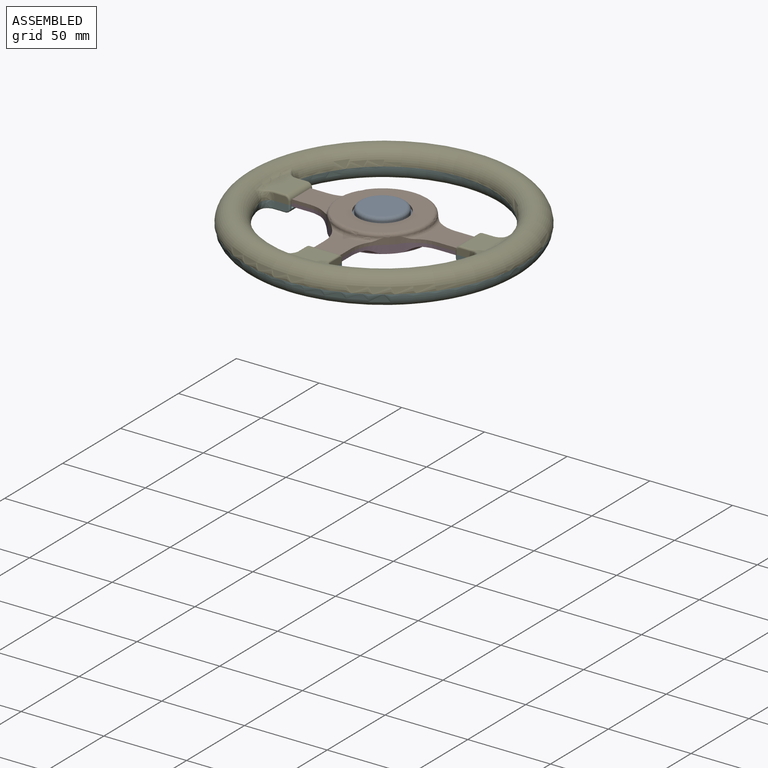
[diagram: assembled view]
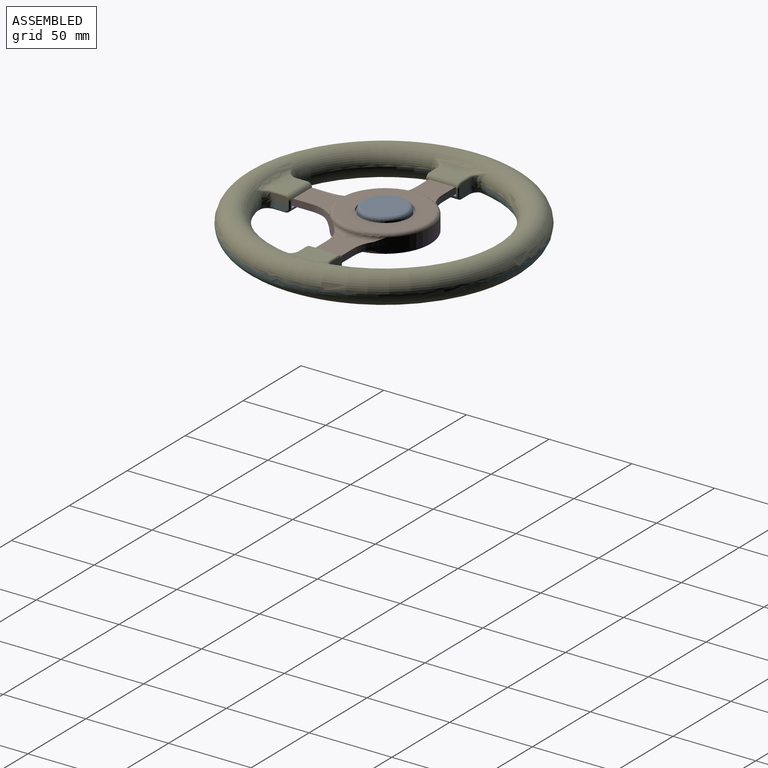
[diagram: assembled view, second angle]
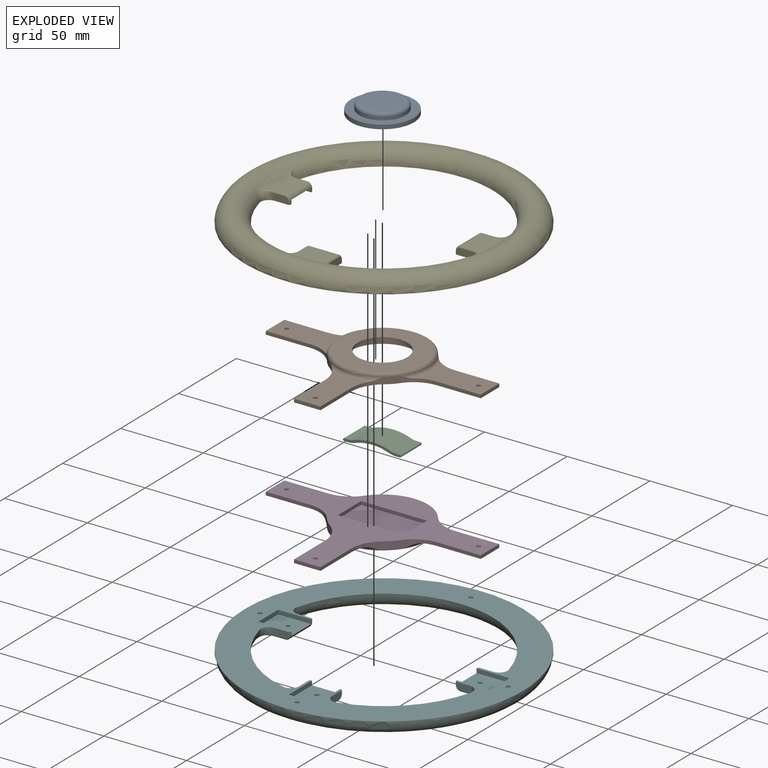
[diagram: exploded view]
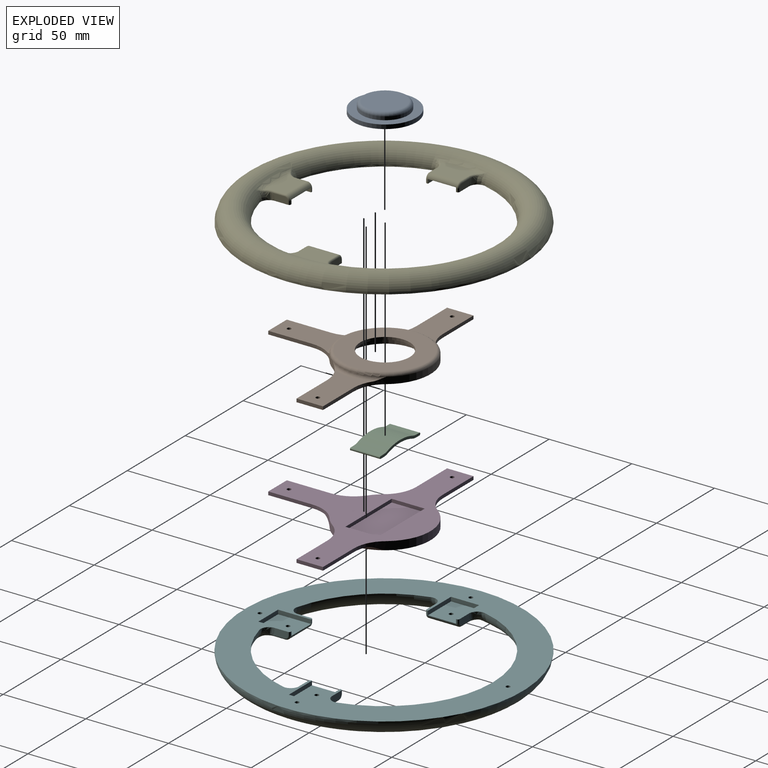
[diagram: exploded view, second angle]
ASSEMBLY  parts=6 mates=5
PART A: 6 faces, bbox 38x38x6.5 mm
  f0: cylinder r=19mm len=38mm, axis (0,0,-1), area 298.5mm2, adj f1,f2
  f1: plane 38x38mm, normal (0,0,1), area 518.4mm2, adj f0,f3
  f2: plane 38x38mm, normal (0,0,-1), area 1134.1mm2, adj f0
  f3: cylinder r=14mm len=28mm, axis (0,0,-1), area 175.9mm2, adj f1,f5
  f4: plane 24x24mm, normal (0,0,1), area 452.4mm2, adj f5
  f5: torus R=12mm, axis (0,0,1), area 262mm2, adj f3,f4
PART B: 33 faces, bbox 130x6x94.8 mm
  f0: cylinder r=27.5mm len=6mm, axis (0,1,0), area 34.1mm2, adj f14,f17,f25,f26
  f1: cylinder r=27.5mm len=44.43mm, axis (0,1,0), area 206.9mm2, adj f13,f15,f25,f26
  f2: plane 26.63x2mm, normal (0,0,-1), area 53.3mm2, adj f4,f12,f18,f26
  f3: plane 26.63x2mm, normal (0,0,1), area 53.3mm2, adj f4,f13,f18,f26
  f4: plane 16x2mm, normal (-1,0,0), area 32mm2, adj f2,f3,f18,f26
  f5: cylinder r=27.5mm len=6mm, axis (0,1,0), area 34.1mm2, adj f12,f16,f25,f26
  f6: plane 16x2mm, normal (0,0,-1), area 32mm2, adj f7,f8,f20,f26
  f7: plane 26.63x2mm, normal (1,0,0), area 53.3mm2, adj f6,f17,f20,f26
  f8: plane 26.63x2mm, normal (-1,0,0), area 53.3mm2, adj f6,f16,f20,f26
  f9: plane 16x2mm, normal (1,0,0), area 32mm2, adj f10,f11,f21,f26
  f10: plane 26.63x2mm, normal (0,0,1), area 53.3mm2, adj f9,f15,f21,f26
  f11: plane 26.63x2mm, normal (0,0,-1), area 53.3mm2, adj f9,f14,f21,f26
  f12: cylinder r=20mm len=16.16mm, axis (0,1,0), area 43mm2, adj f2,f5,f18,f22,f26
  f13: cylinder r=20mm len=16.16mm, axis (0,1,0), area 43mm2, adj f1,f3,f18,f22,f26
  f14: cylinder r=20mm len=16.16mm, axis (0,1,0), area 43mm2, adj f0,f11,f21,f23,f26
  f15: cylinder r=20mm len=16.16mm, axis (0,1,0), area 43mm2, adj f1,f10,f21,f23,f26
  f16: cylinder r=20mm len=16.16mm, axis (0,1,0), area 43mm2, adj f5,f8,f20,f24,f26
  f17: cylinder r=20mm len=16.16mm, axis (0,1,0), area 43mm2, adj f0,f7,f20,f24,f26
  f18: plane 37.79x22.81mm, normal (0,1,0), area 589mm2, adj f2,f3,f4,f12,f13,f22,f30
  f19: plane 51x51mm, normal (0,1,0), area 1336mm2, adj f25,f29
  f20: plane 37.79x22.81mm, normal (0,1,0), area 589mm2, adj f6,f7,f8,f16,f17,f24,f31
  f21: plane 37.79x22.81mm, normal (0,1,0), area 589mm2, adj f9,f10,f11,f14,f15,f23,f32
  f22: torus R=29.5mm, axis (0,-1,0), area 89.1mm2, adj f12,f13,f18,f25
  f23: torus R=29.5mm, axis (0,-1,0), area 89.1mm2, adj f14,f15,f21,f25
  f24: torus R=29.5mm, axis (0,-1,0), area 89.1mm2, adj f16,f17,f20,f25
  f25: torus R=25.5mm, axis (0,-1,0), area 528.5mm2, adj f0,f1,f5,f19,f22,f23,f24
  f26: plane 130x92.5mm, normal (0,-1,0), area 3047.1mm2, adj f0,f1,f2,f3,f4,f5,f6,f7
  f27: cylinder r=20mm len=40mm, axis (0,-1,0), area 565.5mm2, adj f26,f28
  f28: plane 40x40mm, normal (0,-1,0), area 549.8mm2, adj f27,f29
  f29: cylinder r=15mm len=30mm, axis (0,-1,0), area 141.4mm2, adj f19,f28
  f30: cylinder r=1.25mm len=2.5mm, axis (0,1,0), area 15.7mm2, adj f18,f26
  f31: cylinder r=1.25mm len=2.5mm, axis (0,1,0), area 15.7mm2, adj f20,f26
  f32: cylinder r=1.25mm len=2.5mm, axis (0,1,0), area 15.7mm2, adj f21,f26
PART C: 14 faces, bbox 35x4x18 mm
  f0: plane 18x2.65mm, normal (0,-1,0), area 47.7mm2, adj f6,f7,f9,f12
  f1: cylinder r=31mm len=21.32mm, axis (0,0,-1), area 391.7mm2, adj f6,f7,f9,f11
  f2: plane 18x2.65mm, normal (0,-1,0), area 47.7mm2, adj f6,f7,f11,f13
  f3: plane 18x2.39mm, normal (0,1,0), area 43mm2, adj f6,f7,f10,f13
  f4: cylinder r=32.5mm len=21.96mm, axis (0,0,-1), area 403.3mm2, adj f6,f7,f8,f10
  f5: plane 18x2.39mm, normal (0,1,0), area 43mm2, adj f6,f7,f8,f12
  f6: plane 35x4mm, normal (0,0,1), area 53mm2, adj f0,f1,f2,f3,f4,f5,f8,f9
  f7: plane 35x4mm, normal (0,0,-1), area 53mm2, adj f0,f1,f2,f3,f4,f5,f8,f9
  f8: cylinder r=10mm len=18mm, axis (0,0,-1), area 62mm2, adj f4,f5,f6,f7
  f9: cylinder r=10mm len=18mm, axis (0,0,-1), area 63.2mm2, adj f0,f1,f6,f7
  f10: cylinder r=10mm len=18mm, axis (0,0,-1), area 62mm2, adj f3,f4,f6,f7
  f11: cylinder r=10mm len=18mm, axis (0,0,-1), area 63.2mm2, adj f1,f2,f6,f7
  f12: cylinder r=0.75mm len=18mm, axis (0,0,-1), area 42.4mm2, adj f0,f5,f6,f7
  f13: cylinder r=0.75mm len=18mm, axis (0,0,1), area 42.4mm2, adj f2,f3,f6,f7
PART D: 34 faces, bbox 130x7x92.5 mm
  f0: plane 130x92.5mm, normal (0,-1,0), area 3503.7mm2, adj f1,f2,f3,f4,f5,f6,f7,f8
  f1: cylinder r=27.5mm len=44.43mm, axis (0,1,0), area 258.6mm2, adj f0,f14,f16,f20
  f2: cylinder r=27.5mm len=6mm, axis (0,1,0), area 42.6mm2, adj f0,f15,f18,f20
  f3: plane 26.63x2mm, normal (0,0,-1), area 53.3mm2, adj f0,f5,f13,f19
  f4: plane 26.63x2mm, normal (0,0,1), area 53.3mm2, adj f0,f5,f14,f19
  f5: plane 16x2mm, normal (-1,0,0), area 32mm2, adj f0,f3,f4,f19
  f6: cylinder r=27.5mm len=6mm, axis (0,1,0), area 42.6mm2, adj f0,f13,f17,f20
  f7: plane 16x2mm, normal (0,0,-1), area 32mm2, adj f0,f8,f9,f21
  f8: plane 26.63x2mm, normal (1,0,0), area 53.3mm2, adj f0,f7,f18,f21
  f9: plane 26.63x2mm, normal (-1,0,0), area 53.3mm2, adj f0,f7,f17,f21
  f10: plane 16x2mm, normal (1,0,0), area 32mm2, adj f0,f11,f12,f22
  f11: plane 26.63x2mm, normal (0,0,1), area 53.3mm2, adj f0,f10,f16,f22
  f12: plane 26.63x2mm, normal (0,0,-1), area 53.3mm2, adj f0,f10,f15,f22
  f13: cylinder r=20mm len=16.16mm, axis (0,1,0), area 52.7mm2, adj f0,f3,f6,f19,f23
  f14: cylinder r=20mm len=16.16mm, axis (0,1,0), area 52.7mm2, adj f0,f1,f4,f19,f23
  f15: cylinder r=20mm len=16.16mm, axis (0,1,0), area 52.7mm2, adj f0,f2,f12,f22,f24
  f16: cylinder r=20mm len=16.16mm, axis (0,1,0), area 52.7mm2, adj f0,f1,f11,f22,f24
  f17: cylinder r=20mm len=16.16mm, axis (0,1,0), area 52.7mm2, adj f0,f6,f9,f21,f25
  f18: cylinder r=20mm len=16.16mm, axis (0,1,0), area 52.7mm2, adj f0,f2,f8,f21,f25
  f19: plane 34.38x19.12mm, normal (0,1,0), area 534.4mm2, adj f3,f4,f5,f13,f14,f23,f33
  f20: plane 55x55mm, normal (0,1,0), area 2375.8mm2, adj f1,f2,f6,f23,f24,f25
  f21: plane 34.38x19.12mm, normal (0,1,0), area 534.4mm2, adj f7,f8,f9,f17,f18,f25,f32
  f22: plane 34.38x19.12mm, normal (0,1,0), area 534.4mm2, adj f10,f11,f12,f15,f16,f24,f31
  f23: torus R=32.08mm, axis (0,-1,0), area 141.9mm2, adj f13,f14,f19,f20
  f24: torus R=32.08mm, axis (0,-1,0), area 141.9mm2, adj f15,f16,f20,f22
  f25: torus R=32.08mm, axis (0,-1,0), area 141.9mm2, adj f17,f18,f20,f21
  f26: plane 20x2mm, normal (-1,0,0), area 40mm2, adj f0,f27,f29,f30
  f27: plane 40x2mm, normal (0,0,-1), area 80mm2, adj f0,f26,f28,f30
  f28: plane 20x2mm, normal (1,0,0), area 40mm2, adj f0,f27,f29,f30
  f29: plane 40x2mm, normal (0,0,1), area 80mm2, adj f0,f26,f28,f30
  f30: plane 40x20mm, normal (0,-1,0), area 800mm2, adj f26,f27,f28,f29
  f31: cylinder r=1.25mm len=2.5mm, axis (0,1,0), area 15.7mm2, adj f0,f22
  f32: cylinder r=1.25mm len=2.5mm, axis (0,1,0), area 15.7mm2, adj f0,f21
  f33: cylinder r=1.25mm len=2.5mm, axis (0,1,0), area 15.7mm2, adj f0,f19
PART E: 85 faces, bbox 182.1x182.1x17.3 mm
  f0: plane 2x0.5mm, normal (1,0,0), area 1mm2, adj f4,f28,f29,f56
  f1: plane 2x0.5mm, normal (0,1,0), area 1mm2, adj f4,f27,f33,f61
  f2: plane 2x0.5mm, normal (-1,0,0), area 1mm2, adj f4,f26,f37,f66
  f3: torus R=75mm, axis (0,0,1), area 12633.3mm2, adj f4,f17,f18,f19,f20,f21,f22,f23
  f4: plane 168.25x168.25mm, normal (0,0,-1), area 8448mm2, adj f0,f1,f2,f3,f6,f7,f8,f10
  f5: plane 21.59x12.2mm, normal (0,0,1), area 221.6mm2, adj f25,f28,f42,f43,f58,f59
  f6: plane 8.74x4.01mm, normal (0,1,0), area 32.4mm2, adj f4,f21,f43,f44,f45
  f7: plane 8.74x4.01mm, normal (0,-1,0), area 32.4mm2, adj f4,f22,f56,f57,f58
  f8: plane 2x0.5mm, normal (1,0,0), area 1mm2, adj f4,f28,f31,f45
  f9: plane 21.59x12.2mm, normal (0,0,1), area 221.6mm2, adj f24,f27,f47,f48,f63,f64
  f10: plane 2x0.5mm, normal (0,1,0), area 1mm2, adj f4,f27,f35,f50
  f11: plane 8.74x4.01mm, normal (-1,0,0), area 32.4mm2, adj f4,f19,f48,f49,f50
  f12: plane 8.74x4.01mm, normal (1,0,0), area 32.4mm2, adj f4,f20,f61,f62,f63
  f13: plane 21.59x12.2mm, normal (0,0,1), area 221.6mm2, adj f23,f26,f52,f53,f68,f69
  f14: plane 2x0.5mm, normal (-1,0,0), area 1mm2, adj f4,f26,f39,f55
  f15: plane 8.74x4.01mm, normal (0,-1,0), area 32.4mm2, adj f4,f17,f53,f54,f55
  f16: plane 8.74x4.01mm, normal (0,1,0), area 32.4mm2, adj f4,f18,f66,f67,f68
  f17: bspline ~13.65x8.77mm, area 45.5mm2, adj f3,f4,f15,f51,f52
  f18: bspline ~13.65x8.77mm, area 45.5mm2, adj f3,f4,f16,f69,f70
  f19: bspline ~13.65x8.77mm, area 45.5mm2, adj f3,f4,f11,f46,f47
  f20: bspline ~13.65x8.77mm, area 45.5mm2, adj f3,f4,f12,f64,f65
  f21: bspline ~13.65x8.77mm, area 45.5mm2, adj f3,f4,f6,f41,f42
  f22: bspline ~13.65x8.77mm, area 45.5mm2, adj f3,f4,f7,f59,f60
  f23: torus R=65.2mm, axis (0,0,-1), area 103.7mm2, adj f3,f13,f51,f70
  f24: torus R=65.2mm, axis (0,0,-1), area 103.7mm2, adj f3,f9,f46,f65
  f25: torus R=65.2mm, axis (0,0,-1), area 103.7mm2, adj f3,f5,f41,f60
  f26: cylinder r=3mm len=18mm, axis (0,-1,0), area 76.3mm2, adj f2,f13,f14,f37,f39,f40,f54,f67
  f27: cylinder r=3mm len=18mm, axis (-1,0,0), area 76.3mm2, adj f1,f9,f10,f33,f35,f36,f49,f62
  f28: cylinder r=3mm len=18mm, axis (0,1,0), area 76.3mm2, adj f0,f5,f8,f29,f31,f32,f44,f57
  f29: plane 20x2.5mm, normal (0,1,0), area 50mm2, adj f0,f4,f28,f30,f32
  f30: plane 17x2.5mm, normal (1,0,0), area 42.5mm2, adj f4,f29,f31,f32
  f31: plane 20x2.5mm, normal (0,-1,0), area 50mm2, adj f4,f8,f28,f30,f32
  f32: plane 19.96x17mm, normal (0,0,-1), area 336.7mm2, adj f28,f29,f30,f31,f83
  f33: plane 20x2.5mm, normal (-1,0,0), area 50mm2, adj f1,f4,f27,f34,f36
  f34: plane 17x2.5mm, normal (0,1,0), area 42.5mm2, adj f4,f33,f35,f36
  f35: plane 20x2.5mm, normal (1,0,0), area 50mm2, adj f4,f10,f27,f34,f36
  f36: plane 19.96x17mm, normal (0,0,-1), area 336.7mm2, adj f27,f33,f34,f35,f81
  f37: plane 20x2.5mm, normal (0,-1,0), area 50mm2, adj f2,f4,f26,f38,f40
  f38: plane 17x2.5mm, normal (-1,0,0), area 42.5mm2, adj f4,f37,f39,f40
  f39: plane 20x2.5mm, normal (0,1,0), area 50mm2, adj f4,f14,f26,f38,f40
  f40: plane 19.96x17mm, normal (0,0,-1), area 336.7mm2, adj f26,f37,f38,f39,f79
  f41: bspline ~5.69x3.95mm, area 2.5mm2, adj f21,f25,f42
  f42: bspline ~6.91x3.34mm, area 6.5mm2, adj f5,f21,f41,f43
  f43: cylinder r=1mm len=6.73mm, axis (-1,0,0), area 10.6mm2, adj f5,f6,f42,f44
  f44: torus R=2mm, axis (0,1,0), area 6.5mm2, adj f6,f28,f43,f45
  f45: cylinder r=1mm len=2mm, axis (0,0,-1), area 3.1mm2, adj f4,f6,f8,f44
  f46: bspline ~5.69x3.95mm, area 2.5mm2, adj f19,f24,f47
  f47: bspline ~6.91x3.34mm, area 6.5mm2, adj f9,f19,f46,f48
  f48: cylinder r=1mm len=6.73mm, axis (0,-1,0), area 10.6mm2, adj f9,f11,f47,f49
  f49: torus R=2mm, axis (-1,0,0), area 6.5mm2, adj f11,f27,f48,f50
  f50: cylinder r=1mm len=2mm, axis (0,0,-1), area 3.1mm2, adj f4,f10,f11,f49
  f51: bspline ~5.69x3.95mm, area 2.5mm2, adj f17,f23,f52
  f52: bspline ~6.91x3.34mm, area 6.5mm2, adj f13,f17,f51,f53
  f53: cylinder r=1mm len=6.73mm, axis (1,0,0), area 10.6mm2, adj f13,f15,f52,f54
  f54: torus R=2mm, axis (0,-1,0), area 6.5mm2, adj f15,f26,f53,f55
  f55: cylinder r=1mm len=2mm, axis (0,0,-1), area 3.1mm2, adj f4,f14,f15,f54
  f56: cylinder r=1mm len=2mm, axis (0,0,-1), area 3.1mm2, adj f0,f4,f7,f57
  f57: torus R=2mm, axis (0,-1,0), area 6.5mm2, adj f7,f28,f56,f58
  f58: cylinder r=1mm len=6.73mm, axis (1,0,0), area 10.6mm2, adj f5,f7,f57,f59
  f59: bspline ~6.91x3.34mm, area 6.5mm2, adj f5,f22,f58,f60
  f60: bspline ~5.69x3.95mm, area 2.5mm2, adj f22,f25,f59
  f61: cylinder r=1mm len=2mm, axis (0,0,-1), area 3.1mm2, adj f1,f4,f12,f62
  f62: torus R=2mm, axis (1,0,0), area 6.5mm2, adj f12,f27,f61,f63
  f63: cylinder r=1mm len=6.73mm, axis (0,1,0), area 10.6mm2, adj f9,f12,f62,f64
  f64: bspline ~6.91x3.34mm, area 6.5mm2, adj f9,f20,f63,f65
  f65: bspline ~5.69x3.95mm, area 2.5mm2, adj f20,f24,f64
  f66: cylinder r=1mm len=2mm, axis (0,0,-1), area 3.1mm2, adj f2,f4,f16,f67
  f67: torus R=2mm, axis (0,1,0), area 6.5mm2, adj f16,f26,f66,f68
  f68: cylinder r=1mm len=6.73mm, axis (-1,0,0), area 10.6mm2, adj f13,f16,f67,f69
  f69: bspline ~6.91x3.34mm, area 6.5mm2, adj f13,f18,f68,f70
  f70: bspline ~5.69x3.95mm, area 2.5mm2, adj f18,f23,f69
  f71: cylinder r=0.9mm len=7mm, axis (0,0,-1), area 39.6mm2, adj f4,f72
  f72: plane 1.8x1.8mm, normal (0,0,-1), area 2.5mm2, adj f71
  f73: cylinder r=0.9mm len=7mm, axis (0,0,-1), area 39.6mm2, adj f4,f74
  f74: plane 1.8x1.8mm, normal (0,0,-1), area 2.5mm2, adj f73
  f75: cylinder r=0.9mm len=7mm, axis (0,0,-1), area 39.6mm2, adj f4,f76
  f76: plane 1.8x1.8mm, normal (0,0,-1), area 2.5mm2, adj f75
  f77: cylinder r=0.9mm len=7mm, axis (0,0,-1), area 39.6mm2, adj f4,f78
  f78: plane 1.8x1.8mm, normal (0,0,-1), area 2.5mm2, adj f77
  f79: cylinder r=0.9mm len=2mm, axis (0,0,-1), area 11.3mm2, adj f40,f80
  f80: plane 1.8x1.8mm, normal (0,0,-1), area 2.5mm2, adj f79
  f81: cylinder r=0.9mm len=2mm, axis (0,0,-1), area 11.3mm2, adj f36,f82
  f82: plane 1.8x1.8mm, normal (0,0,-1), area 2.5mm2, adj f81
  f83: cylinder r=0.9mm len=2mm, axis (0,0,-1), area 11.3mm2, adj f32,f84
  f84: plane 1.8x1.8mm, normal (0,0,-1), area 2.5mm2, adj f83
PART F: 92 faces, bbox 182.1x182.1x17.3 mm
  f0: torus R=75mm, axis (0,0,1), area 12554.2mm2, adj f4,f17,f18,f19,f20,f21,f22,f23
  f1: plane 2x0.5mm, normal (1,0,0), area 1mm2, adj f4,f28,f29,f56
  f2: plane 2x0.5mm, normal (0,1,0), area 1mm2, adj f4,f27,f33,f61
  f3: plane 2x0.5mm, normal (-1,0,0), area 1mm2, adj f4,f26,f37,f66
  f4: plane 168.25x168.25mm, normal (0,0,-1), area 8438.6mm2, adj f0,f1,f2,f3,f6,f7,f8,f10
  f5: plane 21.59x12.2mm, normal (0,0,1), area 201.9mm2, adj f25,f28,f42,f43,f58,f59,f87
  f6: plane 8.74x4.01mm, normal (0,1,0), area 32.4mm2, adj f4,f21,f43,f44,f45
  f7: plane 8.74x4.01mm, normal (0,-1,0), area 32.4mm2, adj f4,f22,f56,f57,f58
  f8: plane 2x0.5mm, normal (1,0,0), area 1mm2, adj f4,f28,f31,f45
  f9: plane 21.59x12.2mm, normal (0,0,1), area 201.9mm2, adj f24,f27,f47,f48,f63,f64,f85
  f10: plane 2x0.5mm, normal (0,1,0), area 1mm2, adj f4,f27,f35,f50
  f11: plane 8.74x4.01mm, normal (-1,0,0), area 32.4mm2, adj f4,f19,f48,f49,f50
  f12: plane 8.74x4.01mm, normal (1,0,0), area 32.4mm2, adj f4,f20,f61,f62,f63
  f13: plane 21.59x12.2mm, normal (0,0,1), area 201.9mm2, adj f23,f26,f52,f53,f68,f69,f83
  f14: plane 2x0.5mm, normal (-1,0,0), area 1mm2, adj f4,f26,f39,f55
  f15: plane 8.74x4.01mm, normal (0,-1,0), area 32.4mm2, adj f4,f17,f53,f54,f55
  f16: plane 8.74x4.01mm, normal (0,1,0), area 32.4mm2, adj f4,f18,f66,f67,f68
  f17: bspline ~13.65x8.77mm, area 45.5mm2, adj f0,f4,f15,f51,f52
  f18: bspline ~13.65x8.77mm, area 45.5mm2, adj f0,f4,f16,f69,f70
  f19: bspline ~13.65x8.77mm, area 45.5mm2, adj f0,f4,f11,f46,f47
  f20: bspline ~13.65x8.77mm, area 45.5mm2, adj f0,f4,f12,f64,f65
  f21: bspline ~13.65x8.77mm, area 45.5mm2, adj f0,f4,f6,f41,f42
  f22: bspline ~13.65x8.77mm, area 45.5mm2, adj f0,f4,f7,f59,f60
  f23: torus R=65.2mm, axis (0,0,-1), area 103.7mm2, adj f0,f13,f51,f70
  f24: torus R=65.2mm, axis (0,0,-1), area 103.7mm2, adj f0,f9,f46,f65
  f25: torus R=65.2mm, axis (0,0,-1), area 103.7mm2, adj f0,f5,f41,f60
  f26: cylinder r=3mm len=18mm, axis (0,-1,0), area 76.3mm2, adj f3,f13,f14,f37,f39,f40,f54,f67
  f27: cylinder r=3mm len=18mm, axis (-1,0,0), area 76.3mm2, adj f2,f9,f10,f33,f35,f36,f49,f62
  f28: cylinder r=3mm len=18mm, axis (0,1,0), area 76.3mm2, adj f1,f5,f8,f29,f31,f32,f44,f57
  f29: plane 20x2.5mm, normal (0,1,0), area 50mm2, adj f1,f4,f28,f30,f32
  f30: plane 17x2.5mm, normal (1,0,0), area 42.5mm2, adj f4,f29,f31,f32
  f31: plane 20x2.5mm, normal (0,-1,0), area 50mm2, adj f4,f8,f28,f30,f32
  f32: plane 19.96x17mm, normal (0,0,-1), area 334.4mm2, adj f28,f29,f30,f31,f89
  f33: plane 20x2.5mm, normal (-1,0,0), area 50mm2, adj f2,f4,f27,f34,f36
  f34: plane 17x2.5mm, normal (0,1,0), area 42.5mm2, adj f4,f33,f35,f36
  f35: plane 20x2.5mm, normal (1,0,0), area 50mm2, adj f4,f10,f27,f34,f36
  f36: plane 19.96x17mm, normal (0,0,-1), area 334.4mm2, adj f27,f33,f34,f35,f90
  f37: plane 20x2.5mm, normal (0,-1,0), area 50mm2, adj f3,f4,f26,f38,f40
  f38: plane 17x2.5mm, normal (-1,0,0), area 42.5mm2, adj f4,f37,f39,f40
  f39: plane 20x2.5mm, normal (0,1,0), area 50mm2, adj f4,f14,f26,f38,f40
  f40: plane 19.96x17mm, normal (0,0,-1), area 334.4mm2, adj f26,f37,f38,f39,f91
  f41: bspline ~5.69x3.95mm, area 2.5mm2, adj f21,f25,f42
  f42: bspline ~6.91x3.34mm, area 6.5mm2, adj f5,f21,f41,f43
  f43: cylinder r=1mm len=6.73mm, axis (-1,0,0), area 10.6mm2, adj f5,f6,f42,f44
  f44: torus R=2mm, axis (0,1,0), area 6.5mm2, adj f6,f28,f43,f45
  f45: cylinder r=1mm len=2mm, axis (0,0,-1), area 3.1mm2, adj f4,f6,f8,f44
  f46: bspline ~5.69x3.95mm, area 2.5mm2, adj f19,f24,f47
  f47: bspline ~6.91x3.34mm, area 6.5mm2, adj f9,f19,f46,f48
  f48: cylinder r=1mm len=6.73mm, axis (0,-1,0), area 10.6mm2, adj f9,f11,f47,f49
  f49: torus R=2mm, axis (-1,0,0), area 6.5mm2, adj f11,f27,f48,f50
  f50: cylinder r=1mm len=2mm, axis (0,0,-1), area 3.1mm2, adj f4,f10,f11,f49
  f51: bspline ~5.69x3.95mm, area 2.5mm2, adj f17,f23,f52
  f52: bspline ~6.91x3.34mm, area 6.5mm2, adj f13,f17,f51,f53
  f53: cylinder r=1mm len=6.73mm, axis (1,0,0), area 10.6mm2, adj f13,f15,f52,f54
  f54: torus R=2mm, axis (0,-1,0), area 6.5mm2, adj f15,f26,f53,f55
  f55: cylinder r=1mm len=2mm, axis (0,0,-1), area 3.1mm2, adj f4,f14,f15,f54
  f56: cylinder r=1mm len=2mm, axis (0,0,-1), area 3.1mm2, adj f1,f4,f7,f57
  f57: torus R=2mm, axis (0,-1,0), area 6.5mm2, adj f7,f28,f56,f58
  f58: cylinder r=1mm len=6.73mm, axis (1,0,0), area 10.6mm2, adj f5,f7,f57,f59
  f59: bspline ~6.91x3.34mm, area 6.5mm2, adj f5,f22,f58,f60
  f60: bspline ~5.69x3.95mm, area 2.5mm2, adj f22,f25,f59
  f61: cylinder r=1mm len=2mm, axis (0,0,-1), area 3.1mm2, adj f2,f4,f12,f62
  f62: torus R=2mm, axis (1,0,0), area 6.5mm2, adj f12,f27,f61,f63
  f63: cylinder r=1mm len=6.73mm, axis (0,1,0), area 10.6mm2, adj f9,f12,f62,f64
  f64: bspline ~6.91x3.34mm, area 6.5mm2, adj f9,f20,f63,f65
  f65: bspline ~5.69x3.95mm, area 2.5mm2, adj f20,f24,f64
  f66: cylinder r=1mm len=2mm, axis (0,0,-1), area 3.1mm2, adj f3,f4,f16,f67
  f67: torus R=2mm, axis (0,1,0), area 6.5mm2, adj f16,f26,f66,f68
  f68: cylinder r=1mm len=6.73mm, axis (-1,0,0), area 10.6mm2, adj f13,f16,f67,f69
  f69: bspline ~6.91x3.34mm, area 6.5mm2, adj f13,f18,f68,f70
  f70: bspline ~5.69x3.95mm, area 2.5mm2, adj f18,f23,f69
  f71: cylinder r=2.5mm len=5mm, axis (0,0,1), area 29.9mm2, adj f0,f72
  f72: plane 5x5mm, normal (0,0,1), area 14.7mm2, adj f71,f82
  f73: cylinder r=2.5mm len=5mm, axis (0,0,1), area 26.5mm2, adj f0,f74
  f74: plane 5x5mm, normal (0,0,1), area 14.7mm2, adj f73,f81
  f75: cylinder r=2.5mm len=5mm, axis (0,0,1), area 29.9mm2, adj f0,f76
  f76: plane 5x5mm, normal (0,0,1), area 14.7mm2, adj f75,f80
  f77: cylinder r=2.5mm len=5mm, axis (0,0,1), area 27.1mm2, adj f0,f78
  f78: plane 5x5mm, normal (0,0,1), area 14.7mm2, adj f77,f79
  f79: cylinder r=1.25mm len=7mm, axis (0,0,-1), area 55mm2, adj f4,f78
  f80: cylinder r=1.25mm len=7mm, axis (0,0,-1), area 55mm2, adj f4,f76
  f81: cylinder r=1.25mm len=7mm, axis (0,0,-1), area 55mm2, adj f4,f74
  f82: cylinder r=1.25mm len=7mm, axis (0,0,-1), area 55mm2, adj f4,f72
  f83: cylinder r=2.5mm len=5mm, axis (0,0,1), area 15.7mm2, adj f13,f84
  f84: plane 5x5mm, normal (0,0,1), area 14.7mm2, adj f83,f91
  f85: cylinder r=2.5mm len=5mm, axis (0,0,1), area 15.7mm2, adj f9,f86
  f86: plane 5x5mm, normal (0,0,1), area 14.7mm2, adj f85,f90
  f87: cylinder r=2.5mm len=5mm, axis (0,0,1), area 15.7mm2, adj f5,f88
  f88: plane 5x5mm, normal (0,0,1), area 14.7mm2, adj f87,f89
  f89: cylinder r=1.25mm len=2.5mm, axis (0,0,-1), area 11.8mm2, adj f32,f88
  f90: cylinder r=1.25mm len=2.5mm, axis (0,0,-1), area 11.8mm2, adj f36,f86
  f91: cylinder r=1.25mm len=2.5mm, axis (0,0,-1), area 11.8mm2, adj f40,f84
PLACE A t=(20.35,40.15,-72.71)mm
PLACE B rot(axis=(0,0.71,0.71),180deg) t=(20.35,40.15,-74.71)mm
PLACE C rot(axis=(1,0,0),90deg) t=(20.27,49.15,-75.96)mm
PLACE D rot(axis=(-1,0,0),90deg) t=(20.35,40.15,-74.71)mm
PLACE E t=(21.25,40.15,-75.21)mm fixed
PLACE F rot(axis=(0,1,0),180deg) t=(21.25,40.15,-75.21)mm
MATE fastened F.f81 <-> E.f73  axis (0,0,1) through (-53.75,40.15,-75.21)mm
MATE slider C.f0 <-> D.f30  axis (0,0,-1) through (4.85,40.15,-76.71)mm
MATE fastened B.f32 <-> E.f83  axis (0,0,1) through (-37.65,40.15,-72.71)mm
MATE fastened D.f33 <-> B.f32  axis (0,0,1) through (-37.65,40.15,-74.71)mm
MATE fastened A.f3 <-> B.f29  axis (0,0,1) through (20.35,40.15,-70.21)mm
